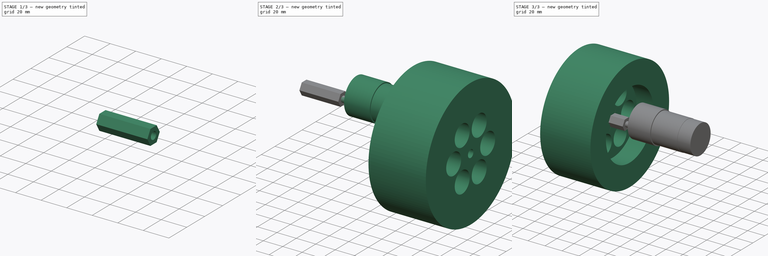
[diagram: build sequence overview — one tinted view per stage of 3, left to right]
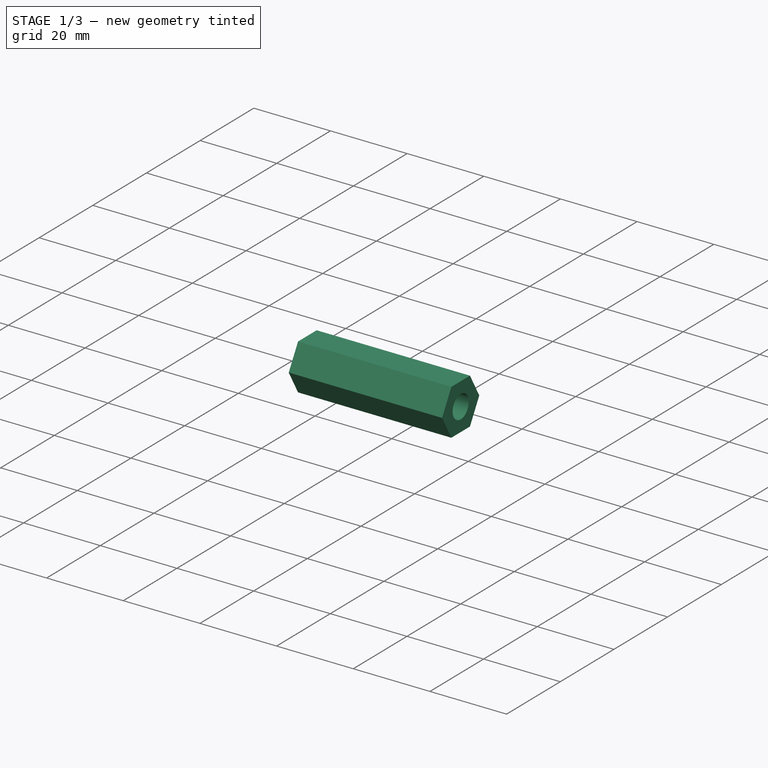
[diagram: stage 1 of 3 — iso view after this stage's code; geometry added in this stage tinted green]
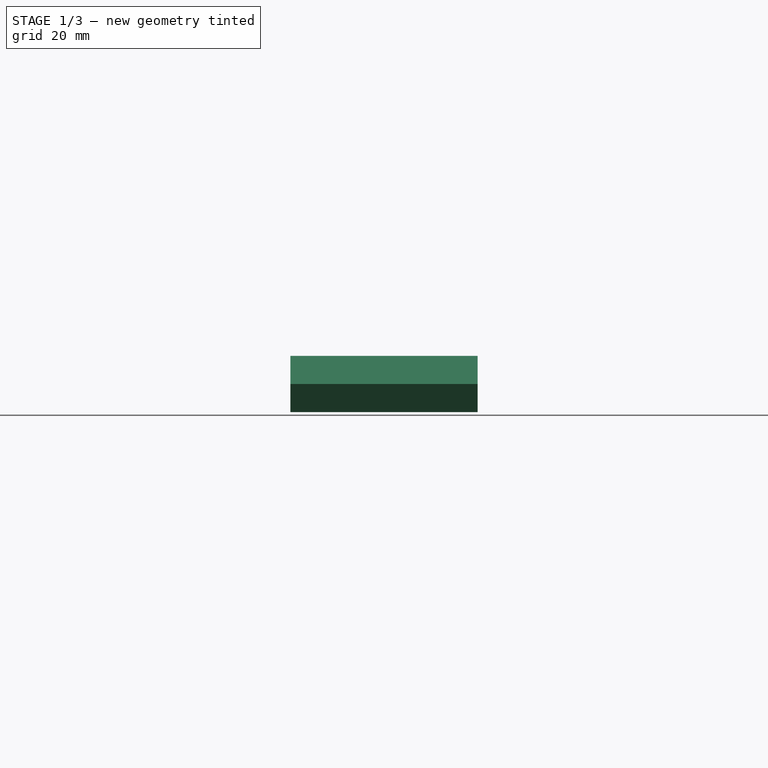
[diagram: stage 1 of 3 — front view after this stage's code; geometry added in this stage tinted green]
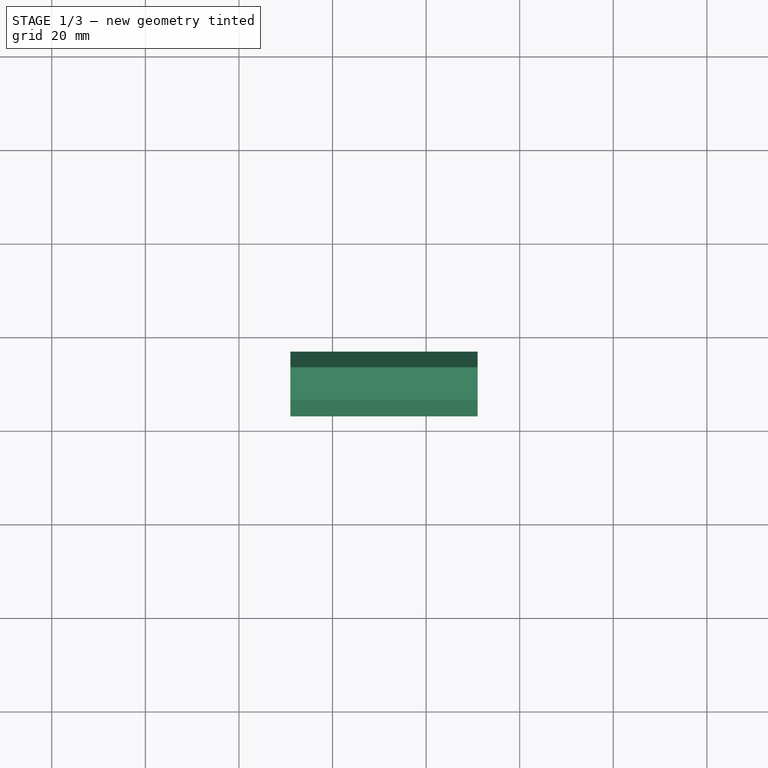
[diagram: stage 1 of 3 — top view after this stage's code; geometry added in this stage tinted green]
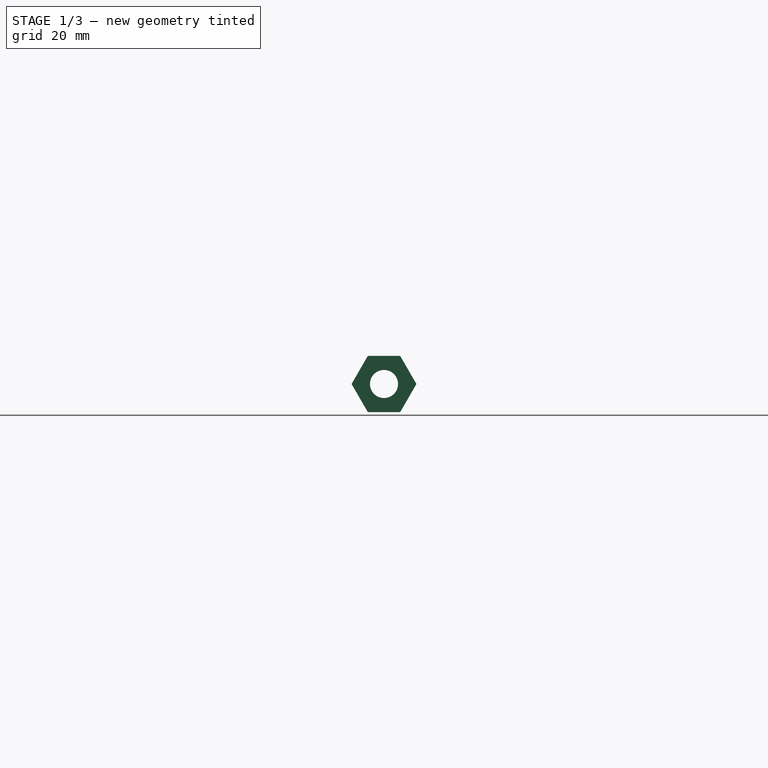
[diagram: stage 1 of 3 — right view after this stage's code; geometry added in this stage tinted green]
FCSTD DOCUMENT  (FreeCAD 0.20R)
Label: motor_wheel_combo
License: All rights reserved
LicenseURL: http://en.wikipedia.org/wiki/All_rights_reserved
objects: Sketcher::SketchObject×4, Part::Mirroring×3, PartDesign::Pad×2, PartDesign::Pocket×2, PartDesign::Body×2, Part::Feature×1, App::Part×1
note: 18 computed .brp shape members not serialized (recipe doc carries the construction recipe); baked Part::Feature solids carry a one-line shape summary decoded from their .brp

FEATURE [PartDesign::Body] Body003  label="wheel right"
  Group = -> [Sketch004,Pad003,Sketch005,Pocket001,Sketch006,Pocket002]
  Origin = -> Origin007
  Placement = pos=(135,10,10) rot=(0,0,1;0rad)
  Tip = -> Pocket002
FEATURE [Part::Feature] Part__Feature080004  label="Gearmotor_37D_100 v1"
  Placement = pos=(95,10,17) rot=(1,0,0;1.5708rad)
  shape: bbox 94.6 x 36.8 x 36.8 mm, 28 faces (baked)
FEATURE [Sketcher::SketchObject] Sketch054
  FullyConstrained = false
  MapMode = 5
  Placement = pos=(0,0,0) rot=(0.57735,0.57735,0.57735;2.0944rad)
  Support = -> [YZ_Plane021]
  sketch-geometry (8):
    g0: LineSegment StartX=6.9282 StartY=0 StartZ=0 EndX=3.4641 EndY=6 EndZ=0
    g1: LineSegment StartX=3.4641 StartY=6 StartZ=0 EndX=-3.4641 EndY=6 EndZ=0
    g2: LineSegment StartX=-3.4641 StartY=6 StartZ=0 EndX=-6.9282 EndY=0 EndZ=0
    g3: LineSegment StartX=-6.9282 StartY=0 StartZ=0 EndX=-3.4641 EndY=-6 EndZ=0
    g4: LineSegment StartX=-3.4641 StartY=-6 StartZ=0 EndX=3.4641 EndY=-6 EndZ=0
    g5: LineSegment StartX=3.4641 StartY=-6 StartZ=0 EndX=6.9282 EndY=0 EndZ=0
    g6: Circle CenterX=0 CenterY=0 CenterZ=0 NormalX=0 NormalY=0 NormalZ=1 AngleXU=0 Radius=6.9282
    g7: Circle CenterX=0 CenterY=0 CenterZ=0 NormalX=0 NormalY=0 NormalZ=1 AngleXU=0 Radius=3
  constraints (18):
    c: Coincident(g0,g1)
    c: Coincident(g1,g2)
    c: Coincident(g2,g3)
    c: Coincident(g3,g4)
    c: Coincident(g4,g5)
    c: Coincident(g5,g0)
    c: Equal(g0, g1-g5) x5
    c: PointOnObject(g0,g6)
    c: PointOnObject(g1,g6)
    c: PointOnObject(g2,g6)
    c: PointOnObject(g3,g6)
    c: PointOnObject(g4,g6)
    c: PointOnObject(g5,g6)
    c: Coincident(g6,g-1)
    c: DistanceY(g-1,g2) = 0
    c: DistanceY(g3,g1) = 12
    c: Coincident(g7,g-1)
    c: Diameter(g7) = 6
FEATURE [PartDesign::Pad] Pad008
  AllowMultiFace = false
  Direction = (1,1,1)
  Length = 40
  Length2 = 100
  Placement = pos=(0,0,0) rot=(0.57735,0.57735,0.57735;2.0944rad)
  Profile = -> Sketch054
  Type = 0
FEATURE [Part::Mirroring] Part__Mirroring003  label="wheeladapter (Mirror #4)"
  Base = (0,0,0)
  Normal = (1,0,0)
  Source = -> Body
FEATURE [App::Part] Part003  label="motor_wheel_combo"
  Group = -> [Body003,Part__Feature080004,Body,Part__Mirroring001,Part__Mirroring003,Part__Mirroring002]
  Origin = -> Origin022
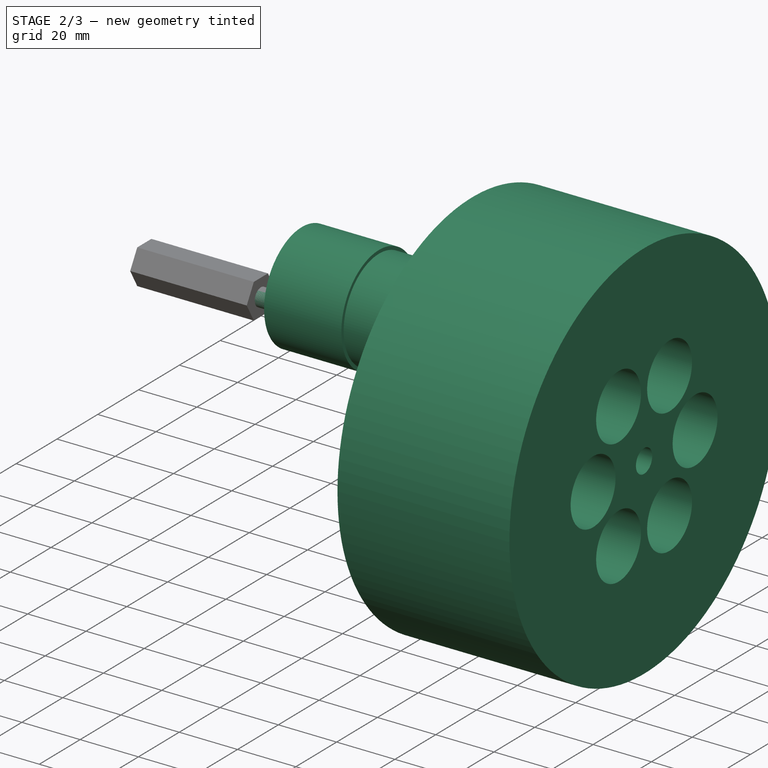
[diagram: stage 2 of 3 — iso view after this stage's code; geometry added in this stage tinted green]
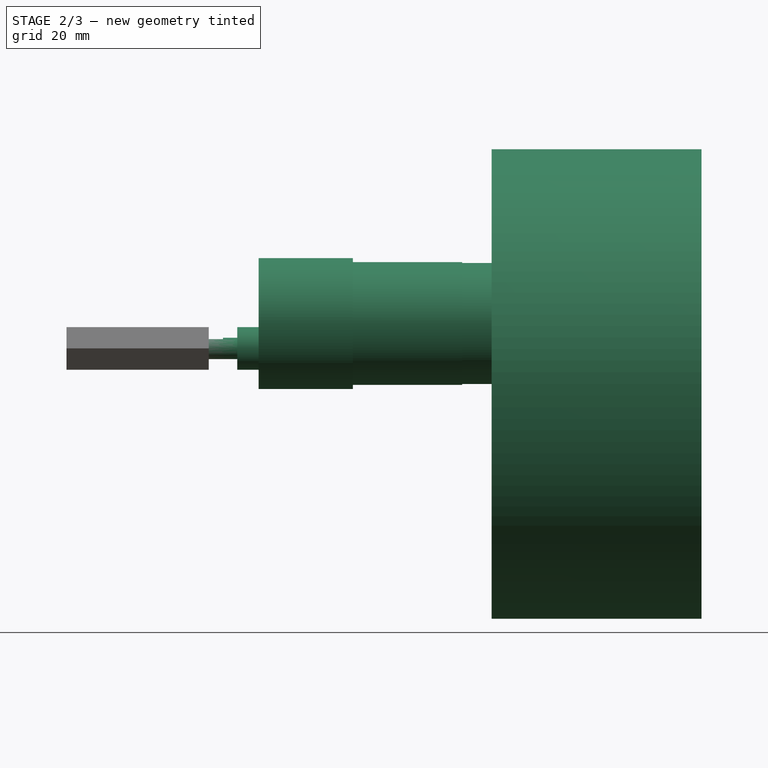
[diagram: stage 2 of 3 — front view after this stage's code; geometry added in this stage tinted green]
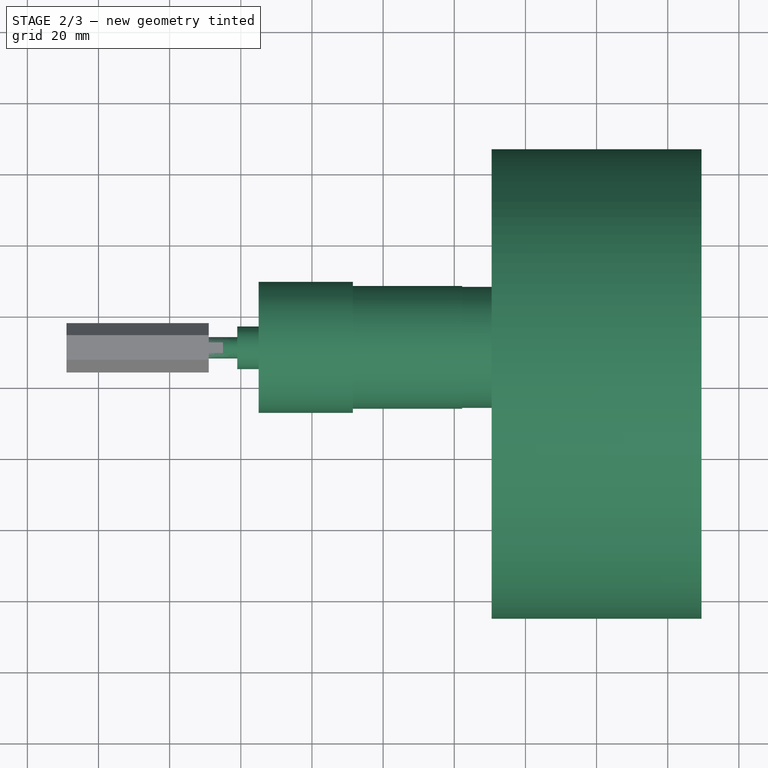
[diagram: stage 2 of 3 — top view after this stage's code; geometry added in this stage tinted green]
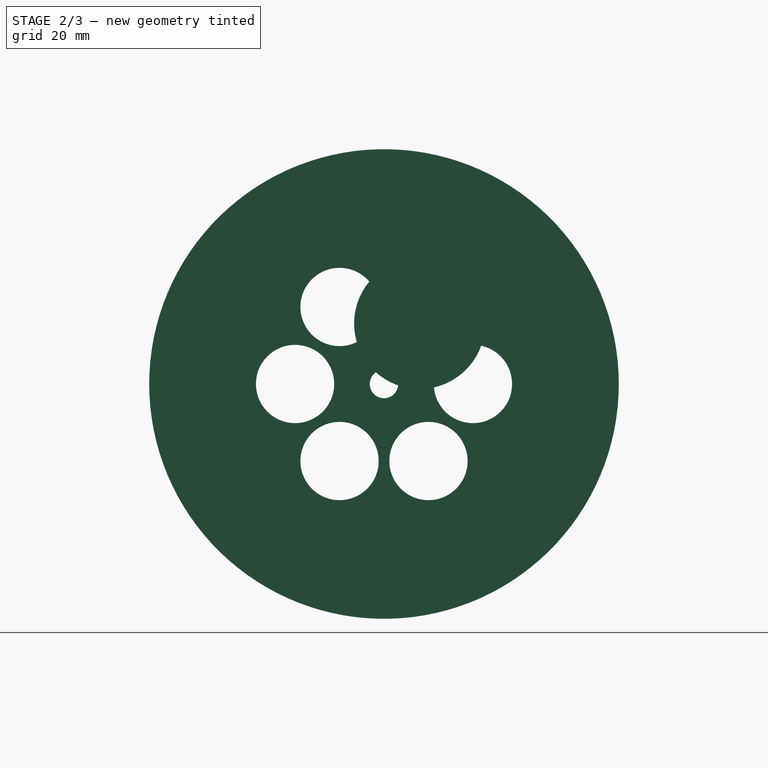
[diagram: stage 2 of 3 — right view after this stage's code; geometry added in this stage tinted green]
FEATURE [Sketcher::SketchObject] Sketch004
  FullyConstrained = false
  MapMode = 5
  Placement = pos=(0,0,0) rot=(0.57735,0.57735,0.57735;2.0944rad)
  Support = -> [YZ_Plane007]
  sketch-geometry (15):
    g0: Circle CenterX=0 CenterY=0 CenterZ=0 NormalX=0 NormalY=0 NormalZ=1 AngleXU=0 Radius=66
    g1: Circle CenterX=0 CenterY=0 CenterZ=0 NormalX=0 NormalY=0 NormalZ=1 AngleXU=0 Radius=4
    g2: LineSegment StartX=12.5 StartY=-21.6506 StartZ=0 EndX=25 EndY=0 EndZ=0
    g3: LineSegment StartX=25 StartY=0 StartZ=0 EndX=12.5 EndY=21.6506 EndZ=0
    g4: LineSegment StartX=12.5 StartY=21.6506 StartZ=0 EndX=-12.5 EndY=21.6506 EndZ=0
    g5: LineSegment StartX=-12.5 StartY=21.6506 StartZ=0 EndX=-25 EndY=-3.4746e-12 EndZ=0
    g6: LineSegment StartX=-25 StartY=-3.4746e-12 StartZ=0 EndX=-12.5 EndY=-21.6506 EndZ=0
    g7: LineSegment StartX=-12.5 StartY=-21.6506 StartZ=0 EndX=12.5 EndY=-21.6506 EndZ=0
    g8: Circle CenterX=0 CenterY=0 CenterZ=0 NormalX=0 NormalY=0 NormalZ=1 AngleXU=0 Radius=25
    g9: Circle CenterX=12.5 CenterY=-21.6506 CenterZ=0 NormalX=0 NormalY=0 NormalZ=1 AngleXU=0 Radius=11
    g10: Circle CenterX=25 CenterY=0 CenterZ=0 NormalX=0 NormalY=0 NormalZ=1 AngleXU=0 Radius=11
    g11: Circle CenterX=12.5 CenterY=21.6506 CenterZ=0 NormalX=0 NormalY=0 NormalZ=1 AngleXU=0 Radius=11
    g12: Circle CenterX=-12.5 CenterY=21.6506 CenterZ=0 NormalX=0 NormalY=0 NormalZ=1 AngleXU=0 Radius=11
    g13: Circle CenterX=-25 CenterY=-3.4746e-12 CenterZ=0 NormalX=0 NormalY=0 NormalZ=1 AngleXU=0 Radius=11
    g14: Circle CenterX=-12.5 CenterY=-21.6506 CenterZ=0 NormalX=0 NormalY=0 NormalZ=1 AngleXU=0 Radius=11
  constraints (33):
    c: Coincident(g0,g-1)
    c: Diameter(g0) = 132
    c: Coincident(g1,g0)
    c: Diameter(g1) = 8
    c: Coincident(g2,g3)
    c: Coincident(g3,g4)
    c: Coincident(g4,g5)
    c: Coincident(g5,g6)
    c: Coincident(g6,g7)
    c: Coincident(g7,g2)
    c: Equal(g2, g3-g7) x5
    c: PointOnObject(g2,g8)
    c: PointOnObject(g3,g8)
    c: PointOnObject(g4,g8)
    c: PointOnObject(g5,g8)
    c: PointOnObject(g6,g8)
    c: PointOnObject(g7,g8)
    c: Diameter(g8) = 50
    c: DistanceX(g8,g0) = 0
    c: DistanceY(g8,g0) = 0
    c: DistanceY(g0,g2) = 0
    c: Coincident(g14,g6)
    c: Coincident(g9,g2)
    c: Coincident(g10,g2)
    c: Coincident(g11,g3)
    c: Coincident(g12,g4)
    c: Coincident(g13,g5)
    c: Equal(g12,g11)
    c: Equal(g11,g10)
    c: Equal(g10,g9)
    c: Equal(g9,g14)
    c: Equal(g14,g13)
    c: Diameter(g11) = 22
FEATURE [PartDesign::Pad] Pad003
  AllowMultiFace = false
  Direction = (1,1,1)
  Length = 59
  Length2 = 100
  Midplane = true
  Placement = pos=(0,0,0) rot=(0.57735,0.57735,0.57735;2.0944rad)
  Profile = -> Sketch004
  Type = 0
FEATURE [Sketcher::SketchObject] Sketch005
  FullyConstrained = false
  MapMode = 5
  Placement = pos=(-29.5,6e-15,-6e-15) rot=(0.57735,0.57735,-0.57735;4.18879rad)
  Support = -> [Pad003]
  sketch-geometry (1):
    g0: Circle CenterX=0 CenterY=0 CenterZ=0 NormalX=0 NormalY=0 NormalZ=1 AngleXU=0 Radius=40
  constraints (2):
    c: Coincident(g0,g-1)
    c: Diameter(g0) = 80
FEATURE [PartDesign::Pocket] Pocket001
  AllowMultiFace = false
  BaseFeature = -> Pad003
  Direction = (1,1,1)
  Length = 20
  Length2 = 100
  Placement = pos=(0,0,0) rot=(0.57735,0.57735,0.57735;2.0944rad)
  Profile = -> Sketch005
  Type = 0
FEATURE [Part::Mirroring] Part__Mirroring002  label="Gearmotor_37D_100 v1 (Mirror #3)"
  Base = (0,0,0)
  Normal = (1,0,0)
  Source = -> Part__Feature080004
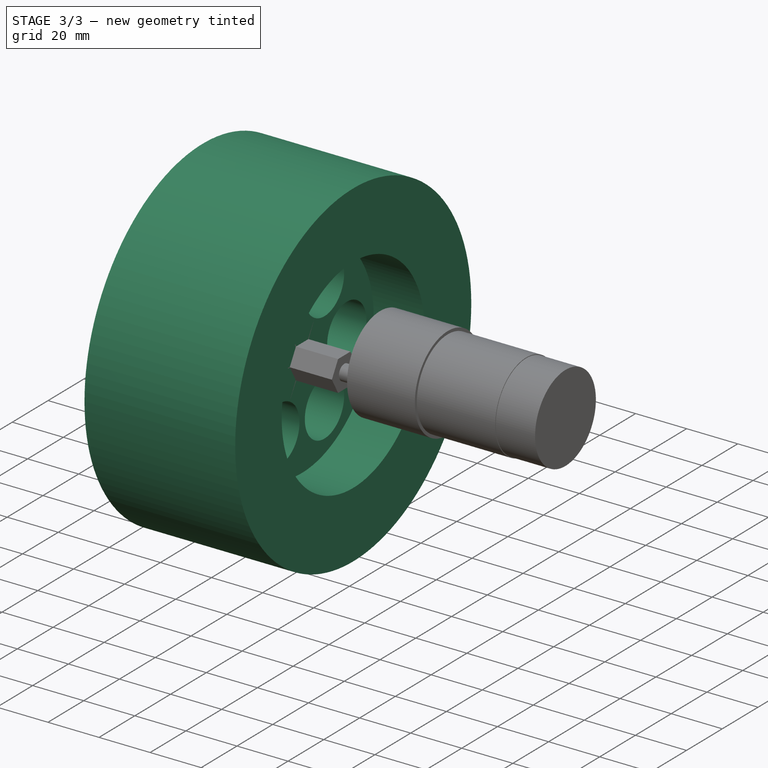
[diagram: stage 3 of 3 — iso view after this stage's code; geometry added in this stage tinted green]
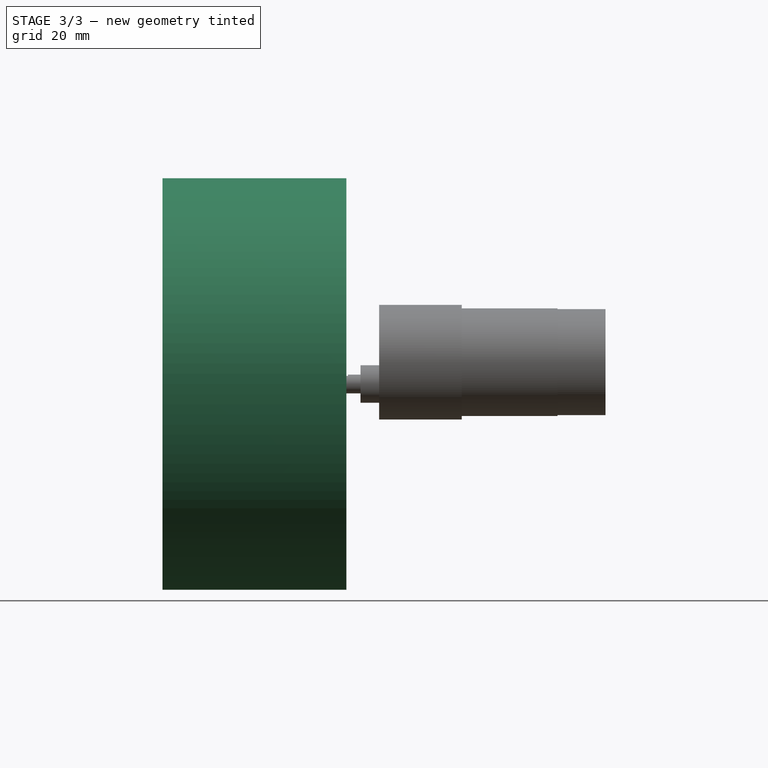
[diagram: stage 3 of 3 — front view after this stage's code; geometry added in this stage tinted green]
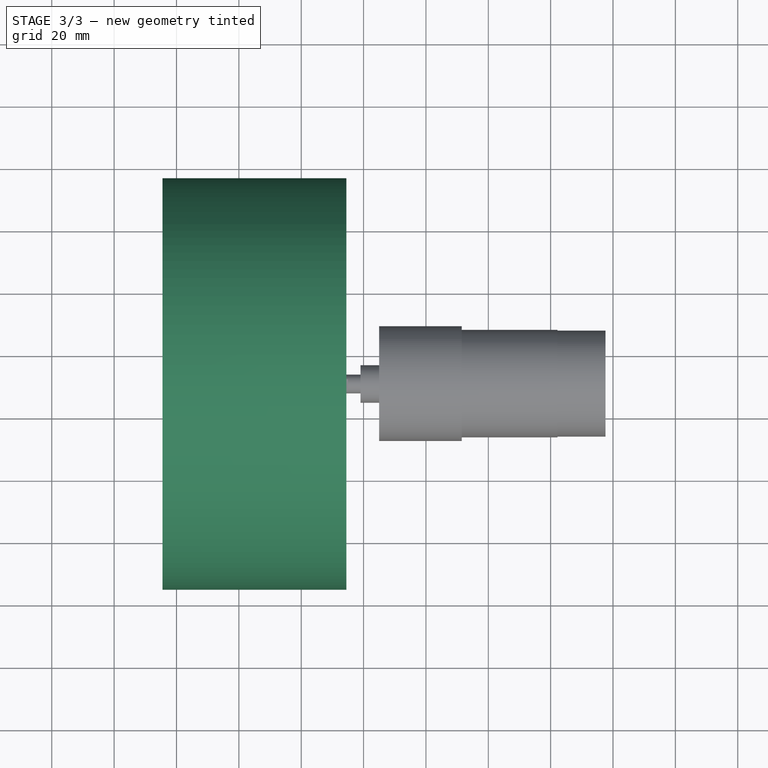
[diagram: stage 3 of 3 — top view after this stage's code; geometry added in this stage tinted green]
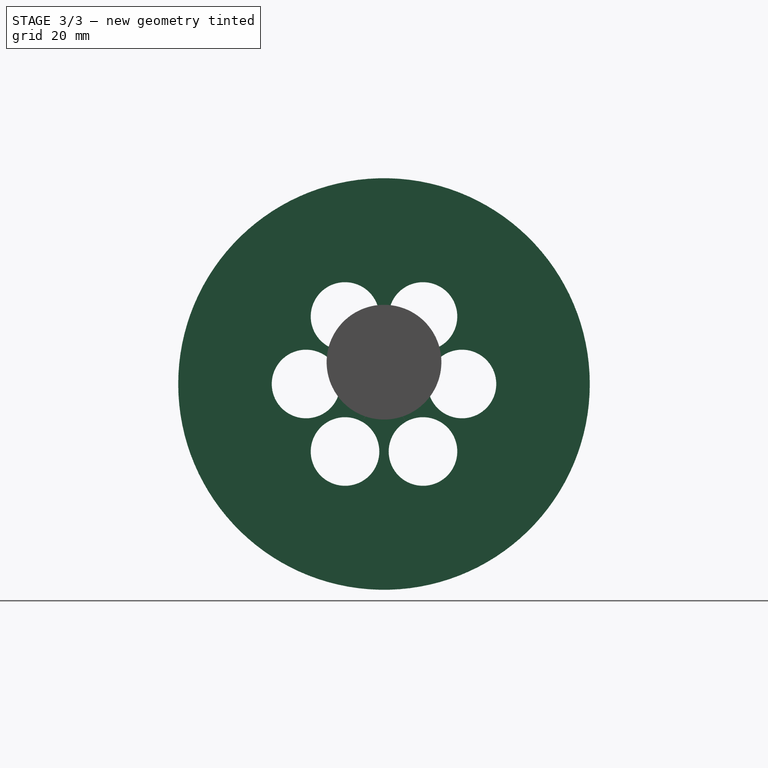
[diagram: stage 3 of 3 — right view after this stage's code; geometry added in this stage tinted green]
FEATURE [Sketcher::SketchObject] Sketch006
  FullyConstrained = false
  MapMode = 5
  Placement = pos=(29.5,-6.5e-15,6.5e-15) rot=(0.57735,0.57735,0.57735;2.0944rad)
  Support = -> [Pocket001]
  sketch-geometry (1):
    g0: Circle CenterX=0 CenterY=0 CenterZ=0 NormalX=0 NormalY=0 NormalZ=1 AngleXU=0 Radius=40
  constraints (2):
    c: Coincident(g0,g-1)
    c: Diameter(g0) = 80
FEATURE [PartDesign::Pocket] Pocket002
  AllowMultiFace = false
  BaseFeature = -> Pocket001
  Direction = (1,1,1)
  Length = 10
  Length2 = 100
  Placement = pos=(0,0,0) rot=(0.57735,0.57735,0.57735;2.0944rad)
  Profile = -> Sketch006
  Type = 0
FEATURE [PartDesign::Body] Body  label="wheeladapter"
  Group = -> [Sketch054,Pad008]
  Origin = -> Origin021
  Placement = pos=(109,10,10) rot=(0,0,1;0rad)
  Tip = -> Pad008
FEATURE [Part::Mirroring] Part__Mirroring001  label="wheel right (Mirror #2)"
  Base = (0,0,0)
  Normal = (1,0,0)
  Source = -> Body003
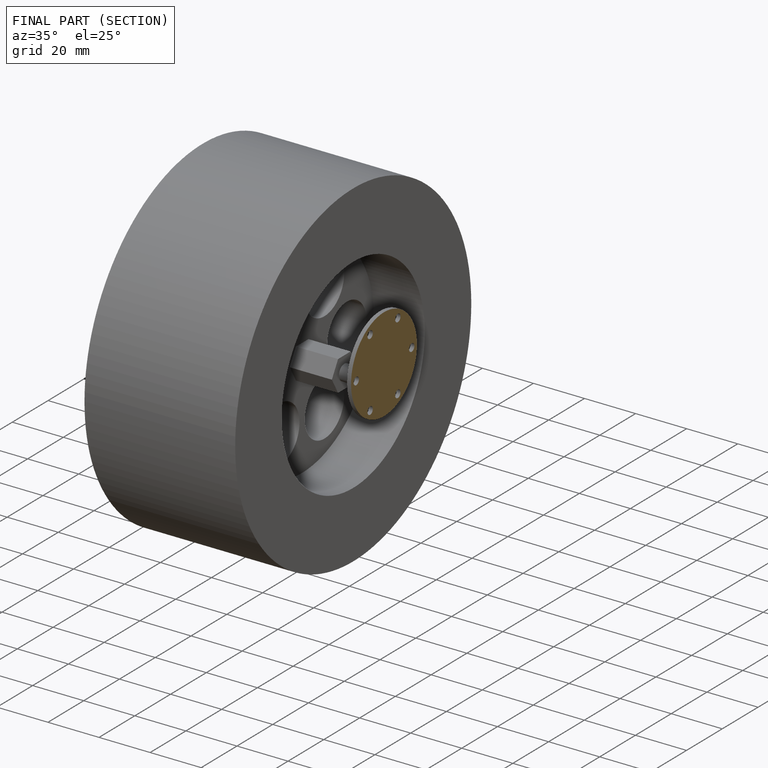
[diagram: finished part — half-section view (interior)]
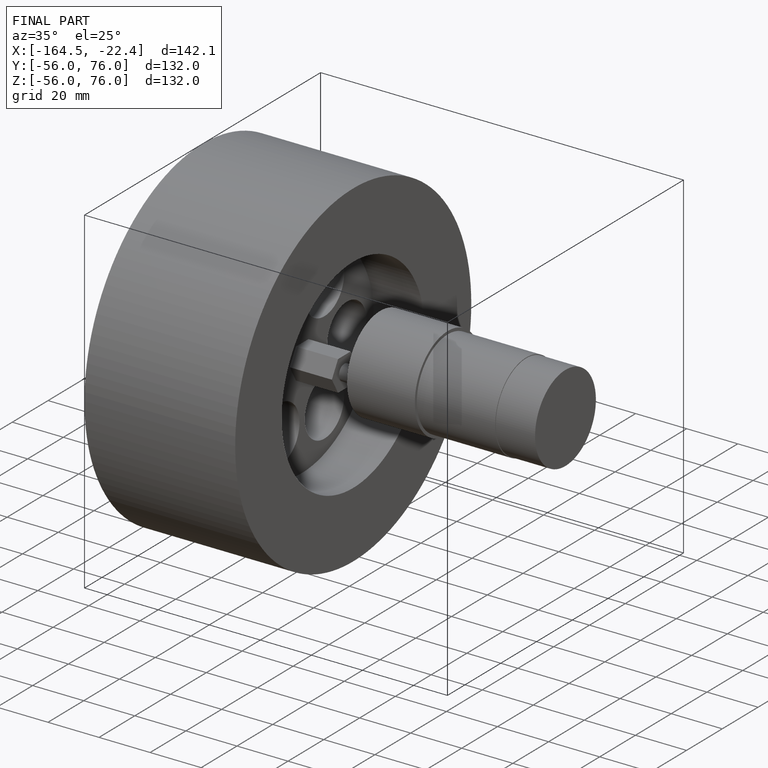
[diagram: finished part — iso view with bounding-box wireframe]
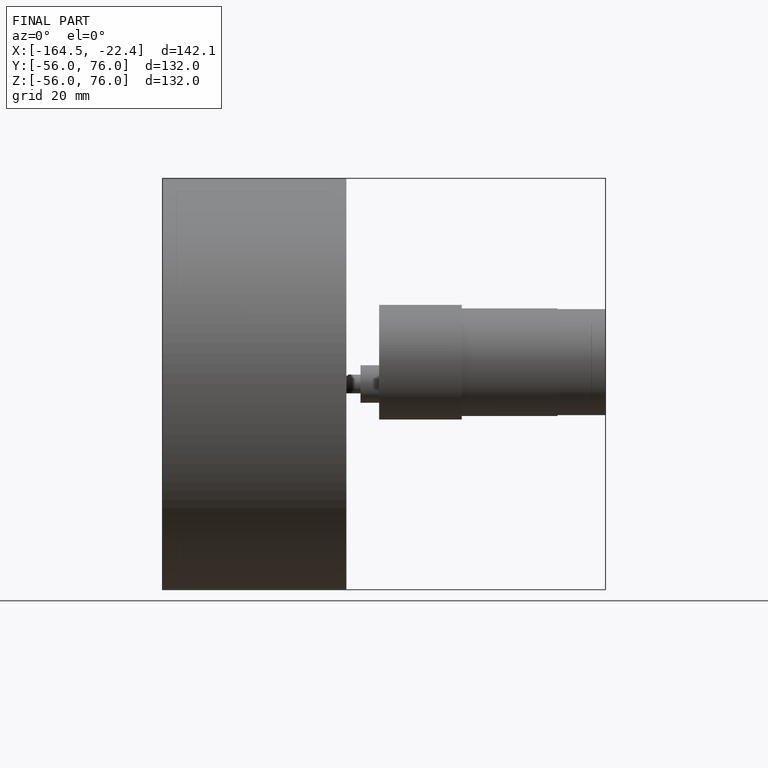
[diagram: finished part — front view with bounding-box wireframe]
